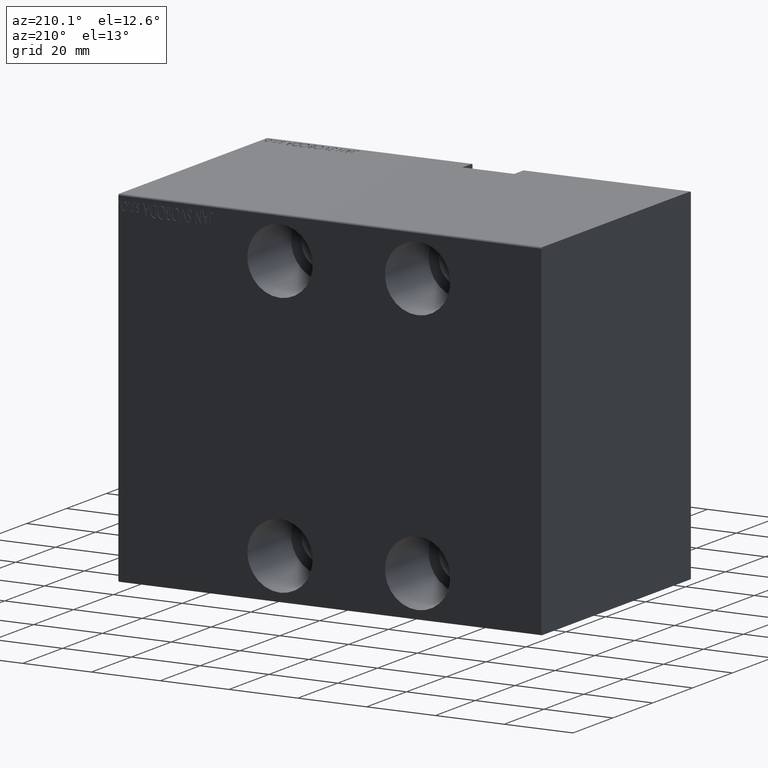
[diagram: clean part render]
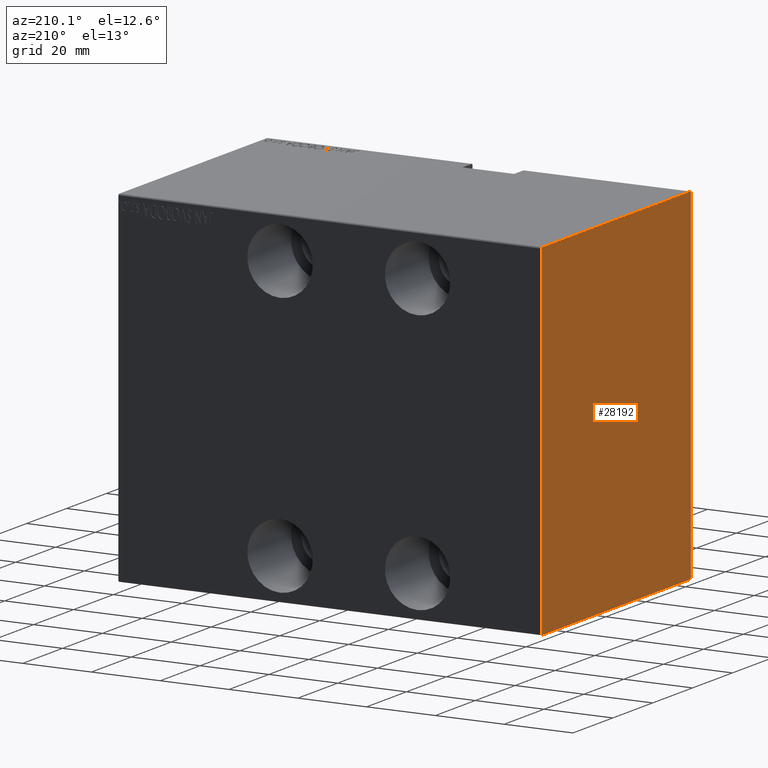
[diagram: same view with one face highlighted and labeled with its STEP entity id]
A machine part, auxiliary view. The second image highlights one B-rep face of the part: STEP entity #28192.
In plain terms, the highlighted planar face has unit normal (-1, 0, 0).
Its self-contained STEP definition (entity closure, byte-faithful):
#167 = ORIENTED_EDGE ( 'NONE', *, *, #18994, .T. ) ;
#1661 = DIRECTION ( 'NONE',  ( 0.000000000000000000, -0.7071067811865556774, -0.7071067811865393571 ) ) ;
#4011 = VERTEX_POINT ( 'NONE', #26870 ) ;
#4455 = ORIENTED_EDGE ( 'NONE', *, *, #39183, .T. ) ;
#4770 = VECTOR ( 'NONE', #1661, 1000.000000000000000 ) ;
#6033 = ORIENTED_EDGE ( 'NONE', *, *, #21900, .T. ) ;
#6709 = LINE ( 'NONE', #33319, #34059 ) ;
#7664 = VECTOR ( 'NONE', #40983, 1000.000000000000000 ) ;
#7744 = CARTESIAN_POINT ( 'NONE',  ( 123.0000000000000000, -37.20000000000000284, -50.00000000000001421 ) ) ;
#7972 = CARTESIAN_POINT ( 'NONE',  ( 123.0000000000000000, 43.60000000000044196, 43.59999999999944009 ) ) ;
#8353 = DIRECTION ( 'NONE',  ( 0.000000000000000000, 0.000000000000000000, -1.000000000000000000 ) ) ;
#8620 = EDGE_CURVE ( 'NONE', #12168, #8760, #31537, .T. ) ;
#8760 = VERTEX_POINT ( 'NONE', #29749 ) ;
#9486 = VECTOR ( 'NONE', #8353, 1000.000000000000000 ) ;
#9997 = VERTEX_POINT ( 'NONE', #25164 ) ;
#10142 = ORIENTED_EDGE ( 'NONE', *, *, #39758, .T. ) ;
#10472 = EDGE_CURVE ( 'NONE', #11472, #15510, #6709, .T. ) ;
#11254 = LINE ( 'NONE', #7972, #22259 ) ;
#11455 = EDGE_CURVE ( 'NONE', #4011, #9997, #11254, .T. ) ;
#11472 = VERTEX_POINT ( 'NONE', #37642 ) ;
#12060 = CARTESIAN_POINT ( 'NONE',  ( 123.0000000000000000, -37.50000000000000000, 50.00000000000000000 ) ) ;
#12168 = VERTEX_POINT ( 'NONE', #16695 ) ;
#12973 = CARTESIAN_POINT ( 'NONE',  ( 123.0000000000000000, 37.50000000000000711, -50.00000000000000711 ) ) ;
#13258 = CARTESIAN_POINT ( 'NONE',  ( 123.0000000000000000, 37.50000000000000711, -49.70000000000003126 ) ) ;
#14472 = LINE ( 'NONE', #34746, #36896 ) ;
#14512 = DIRECTION ( 'NONE',  ( -0.000000000000000000, -0.7071067811865393571, 0.7071067811865556774 ) ) ;
#14591 = DIRECTION ( 'NONE',  ( -0.000000000000000000, 0.7071067811865474617, -0.7071067811865474617 ) ) ;
#14802 = VECTOR ( 'NONE', #14591, 1000.000000000000114 ) ;
#15510 = VERTEX_POINT ( 'NONE', #13258 ) ;
#15892 = VERTEX_POINT ( 'NONE', #7744 ) ;
#16223 = CARTESIAN_POINT ( 'NONE',  ( 123.0000000000000000, 0.000000000000000000, 0.000000000000000000 ) ) ;
#16455 = LINE ( 'NONE', #12973, #42503 ) ;
#16695 = CARTESIAN_POINT ( 'NONE',  ( 123.0000000000000000, -37.19999999999999574, 50.00000000000000000 ) ) ;
#18305 = LINE ( 'NONE', #41212, #14802 ) ;
#18994 = EDGE_CURVE ( 'NONE', #24512, #15892, #18305, .T. ) ;
#21517 = ORIENTED_EDGE ( 'NONE', *, *, #10472, .T. ) ;
#21900 = EDGE_CURVE ( 'NONE', #8760, #24512, #28408, .T. ) ;
#22259 = VECTOR ( 'NONE', #14512, 1000.000000000000000 ) ;
#23082 = DIRECTION ( 'NONE',  ( -0.000000000000000000, 0.7071067811865556774, 0.7071067811865393571 ) ) ;
#24512 = VERTEX_POINT ( 'NONE', #24959 ) ;
#24959 = CARTESIAN_POINT ( 'NONE',  ( 123.0000000000000000, -37.50000000000000000, -49.70000000000002416 ) ) ;
#25164 = CARTESIAN_POINT ( 'NONE',  ( 123.0000000000000000, 37.20000000000000995, 50.00000000000001421 ) ) ;
#25641 = ORIENTED_EDGE ( 'NONE', *, *, #8620, .T. ) ;
#25743 = ORIENTED_EDGE ( 'NONE', *, *, #11455, .T. ) ;
#26676 = DIRECTION ( 'NONE',  ( 1.000000000000000000, 0.000000000000000000, 0.000000000000000000 ) ) ;
#26870 = CARTESIAN_POINT ( 'NONE',  ( 123.0000000000000000, 37.49999999999999289, 49.70000000000003126 ) ) ;
#28192 = ADVANCED_FACE ( 'NONE', ( #29520 ), #42619, .T. ) ;
#28408 = LINE ( 'NONE', #12060, #9486 ) ;
#29520 = FACE_OUTER_BOUND ( 'NONE', #31611, .T. ) ;
#29749 = CARTESIAN_POINT ( 'NONE',  ( 123.0000000000000000, -37.50000000000000000, 49.70000000000000995 ) ) ;
#31537 = LINE ( 'NONE', #40713, #4770 ) ;
#31611 = EDGE_LOOP ( 'NONE', ( #37879, #21517, #10142, #25743, #4455, #25641, #6033, #167 ) ) ;
#31789 = AXIS2_PLACEMENT_3D ( 'NONE', #16223, #26676, #32997 ) ;
#32997 = DIRECTION ( 'NONE',  ( 0.000000000000000000, 0.000000000000000000, -1.000000000000000000 ) ) ;
#33026 = DIRECTION ( 'NONE',  ( 0.000000000000000000, -1.387778780781445182E-16, 1.000000000000000000 ) ) ;
#33319 = CARTESIAN_POINT ( 'NONE',  ( 123.0000000000000000, 43.59999999999958220, -43.60000000000059117 ) ) ;
#34059 = VECTOR ( 'NONE', #23082, 1000.000000000000000 ) ;
#34746 = CARTESIAN_POINT ( 'NONE',  ( 123.0000000000000000, -37.50000000000000000, -50.00000000000001421 ) ) ;
#36896 = VECTOR ( 'NONE', #40660, 1000.000000000000000 ) ;
#37269 = CARTESIAN_POINT ( 'NONE',  ( 123.0000000000000000, 37.49999999999999289, 50.00000000000001421 ) ) ;
#37642 = CARTESIAN_POINT ( 'NONE',  ( 123.0000000000000000, 37.20000000000001705, -50.00000000000000711 ) ) ;
#37879 = ORIENTED_EDGE ( 'NONE', *, *, #38578, .T. ) ;
#38578 = EDGE_CURVE ( 'NONE', #15892, #11472, #14472, .T. ) ;
#39183 = EDGE_CURVE ( 'NONE', #9997, #12168, #40333, .T. ) ;
#39758 = EDGE_CURVE ( 'NONE', #15510, #4011, #16455, .T. ) ;
#40333 = LINE ( 'NONE', #37269, #7664 ) ;
#40660 = DIRECTION ( 'NONE',  ( 0.000000000000000000, 1.000000000000000000, 9.251858538542970348E-17 ) ) ;
#40713 = CARTESIAN_POINT ( 'NONE',  ( 123.0000000000000000, -43.59999999999957510, 43.60000000000058407 ) ) ;
#40983 = DIRECTION ( 'NONE',  ( 0.000000000000000000, -1.000000000000000000, -1.850371707708594563E-16 ) ) ;
#41212 = CARTESIAN_POINT ( 'NONE',  ( 123.0000000000000000, -43.60000000000000853, -43.60000000000000853 ) ) ;
#42503 = VECTOR ( 'NONE', #33026, 1000.000000000000000 ) ;
#42619 = PLANE ( 'NONE',  #31789 ) ;